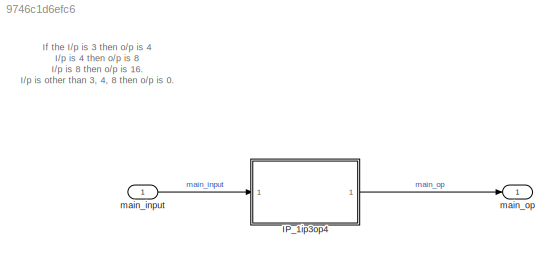
MODEL slx_9746c1d6efc6
KIND model
CONFIG AbsTol = auto
CONFIG EnableMultiTasking = off
CONFIG FixedStep = 1
CONFIG MaxStep = auto
CONFIG MinStep = auto
CONFIG RelTol = 1e-3
CONFIG SampleTimeConstraint = Unconstrained
CONFIG Solver = FixedStepDiscrete
CONFIG SolverName = FixedStepDiscrete
CONFIG StartTime = 0.0
CONFIG StopTime = 10.0
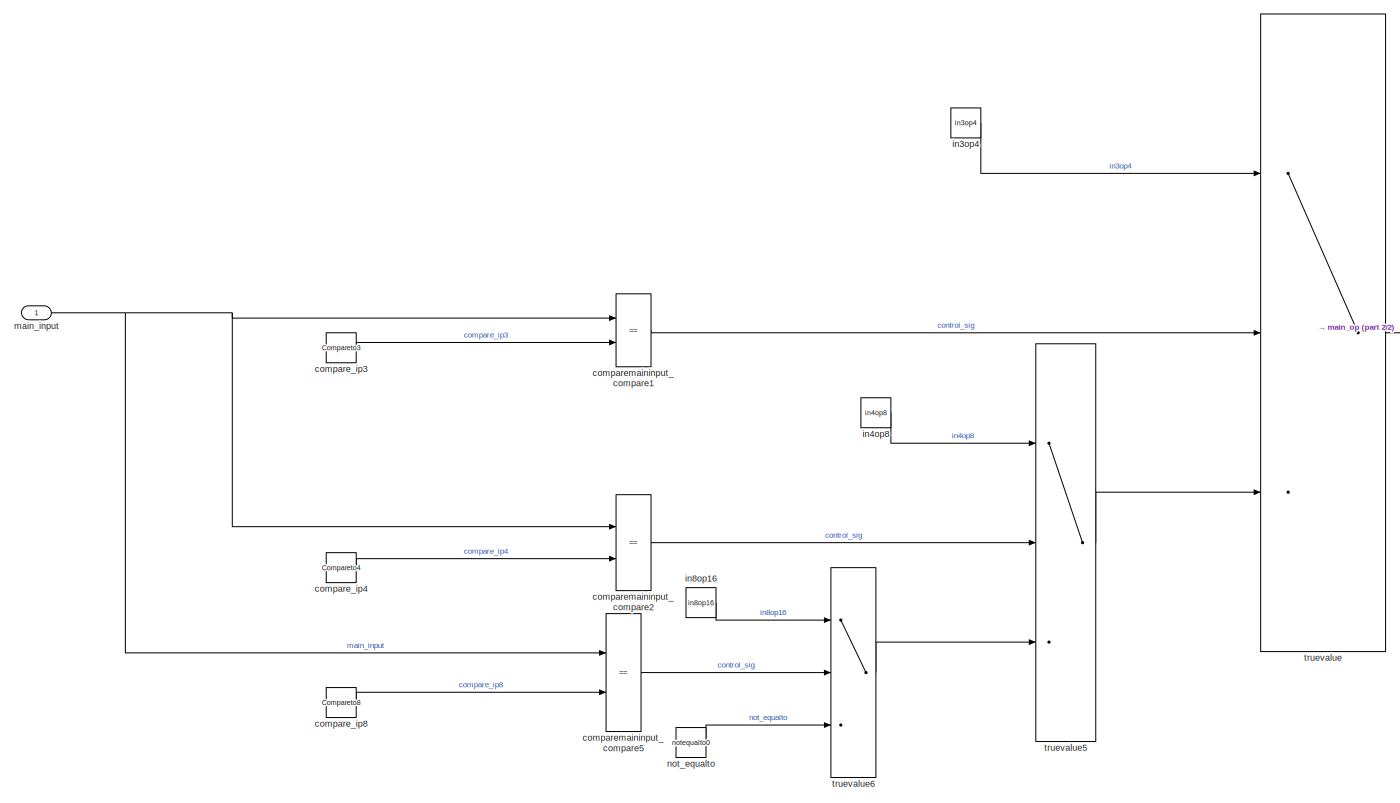
[diagram: IP_1ip3op4 - part 1/2, most of the canvas]
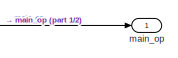
[diagram: IP_1ip3op4 - part 2/2, middle right region]
BLOCK [SubSystem] IP_1ip3op4
  Ports = [1, 1]
  RequestExecContextInheritance = off
  TreatAsAtomicUnit = on
BLOCK [Constant] IP_1ip3op4/compare_ip3
  Value = Compareto3
BLOCK [Constant] IP_1ip3op4/compare_ip4
  Value = Compareto4
BLOCK [Constant] IP_1ip3op4/compare_ip8
  Value = Compareto8
BLOCK [RelationalOperator] IP_1ip3op4/comparemaininput_compare1
  InputSameDT = off
  Operator = ==
  OutDataTypeStr = boolean
  Ports = [2, 1]
  RndMeth = Simplest
BLOCK [RelationalOperator] IP_1ip3op4/comparemaininput_compare2
  InputSameDT = off
  Operator = ==
  OutDataTypeStr = boolean
  Ports = [2, 1]
  RndMeth = Simplest
BLOCK [RelationalOperator] IP_1ip3op4/comparemaininput_compare5
  InputSameDT = off
  Operator = ==
  OutDataTypeStr = boolean
  Ports = [2, 1]
  RndMeth = Simplest
BLOCK [Constant] IP_1ip3op4/in3op4
  Value = in3op4
BLOCK [Constant] IP_1ip3op4/in4op8
  Value = in4op8
BLOCK [Constant] IP_1ip3op4/in8op16
  Value = in8op16
BLOCK [Inport] IP_1ip3op4/main_input
  IconDisplay = Port number
BLOCK [Outport] IP_1ip3op4/main_op
  IconDisplay = Port number
BLOCK [Constant] IP_1ip3op4/not_equalto
  Value = notequalto0
BLOCK [Switch] IP_1ip3op4/truevalue
  InputSameDT = off
  SaturateOnIntegerOverflow = off
  Threshold = 1
BLOCK [Switch] IP_1ip3op4/truevalue5
  InputSameDT = off
  SaturateOnIntegerOverflow = off
  Threshold = 1
BLOCK [Switch] IP_1ip3op4/truevalue6
  InputSameDT = off
  SaturateOnIntegerOverflow = off
  Threshold = 1
BLOCK [Inport] main_input
  IconDisplay = Port number
BLOCK [Outport] main_op
  IconDisplay = Port number
ANNOTATION (root): If the I/p is 3 then o/p is 4 I/p is 4 then o/p is 8 I/p is 8 then o/p is 16. I/p is other than 3, 4, 8 then o/p is 0.
LINE IP_1ip3op4/compare_ip3:1 -> IP_1ip3op4/comparemaininput_compare1:2
LINE IP_1ip3op4/compare_ip4:1 -> IP_1ip3op4/comparemaininput_compare2:2
LINE IP_1ip3op4/compare_ip8:1 -> IP_1ip3op4/comparemaininput_compare5:2
LINE IP_1ip3op4/comparemaininput_compare1:1 -> IP_1ip3op4/truevalue:2
LINE IP_1ip3op4/comparemaininput_compare2:1 -> IP_1ip3op4/truevalue5:2
LINE IP_1ip3op4/comparemaininput_compare5:1 -> IP_1ip3op4/truevalue6:2
LINE IP_1ip3op4/in3op4:1 -> IP_1ip3op4/truevalue:1
LINE IP_1ip3op4/in4op8:1 -> IP_1ip3op4/truevalue5:1
LINE IP_1ip3op4/in8op16:1 -> IP_1ip3op4/truevalue6:1
NET IP_1ip3op4/main_input:1 -> IP_1ip3op4/comparemaininput_compare1:1, IP_1ip3op4/comparemaininput_compare2:1, IP_1ip3op4/comparemaininput_compare5:1
LINE IP_1ip3op4/not_equalto:1 -> IP_1ip3op4/truevalue6:3
LINE IP_1ip3op4/truevalue5:1 -> IP_1ip3op4/truevalue:3
LINE IP_1ip3op4/truevalue6:1 -> IP_1ip3op4/truevalue5:3
LINE IP_1ip3op4/truevalue:1 -> IP_1ip3op4/main_op:1
LINE IP_1ip3op4:1 -> main_op:1
LINE main_input:1 -> IP_1ip3op4:1
note: NET lines group one-source signal fan-out (src -> all destinations, sorted); 1:1 wires keep LINE
